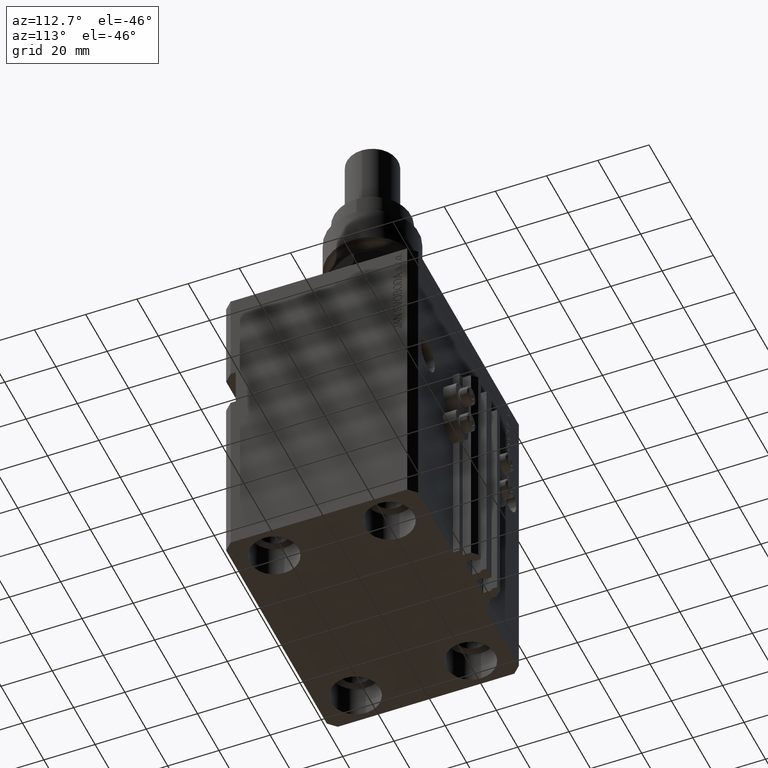
[diagram: clean part render]
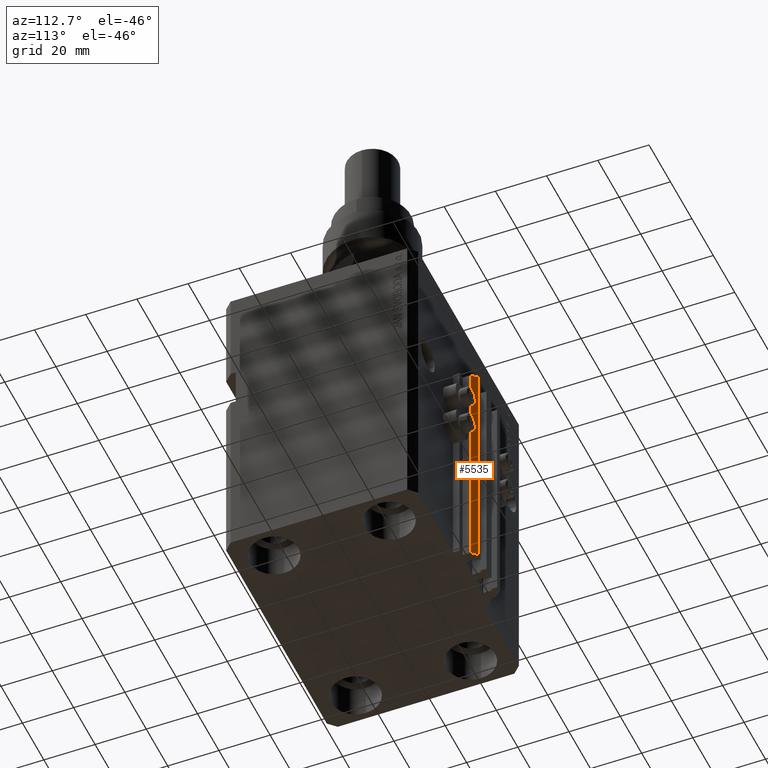
[diagram: same view with one face highlighted and labeled with its STEP entity id]
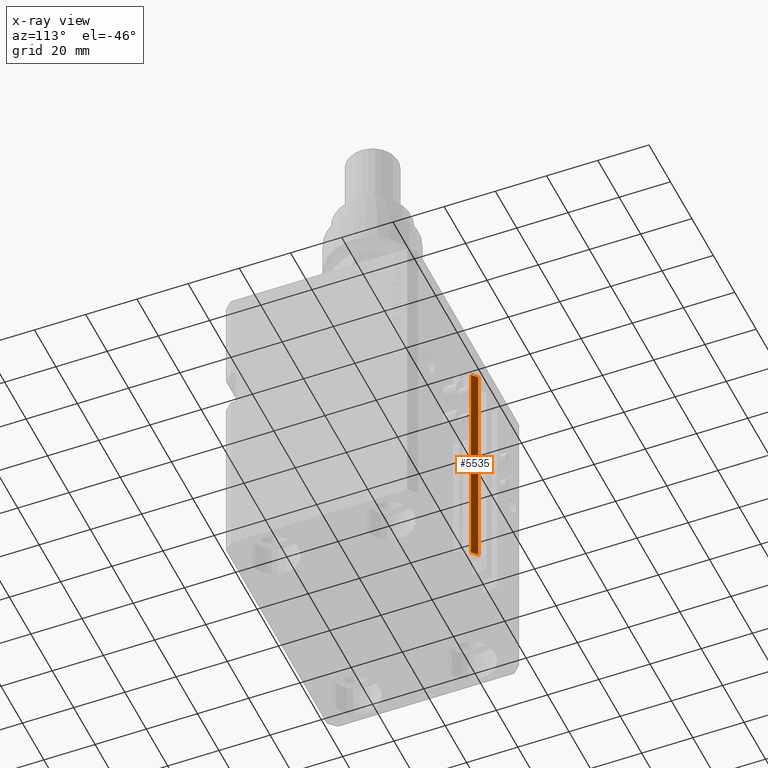
[diagram: x-ray of the same camera — body ghosted, the highlighted face saturated]
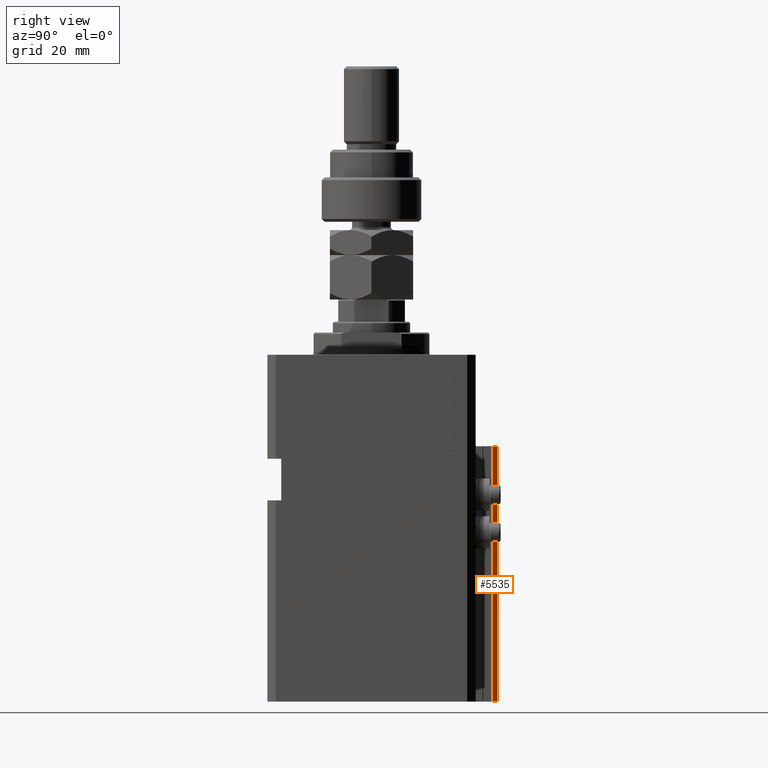
[diagram: same view with one face highlighted and labeled with its STEP entity id]
A machine part, auxiliary view. The second image highlights one B-rep face of the part: STEP entity #5535.
The next image is the same camera in x-ray: the body ghosted, the highlighted face saturated — about 0% of this face is hidden behind the body in this view.
A second angle (right view) of the same face is appended — the face is thin or edge-on in the first view.
In plain terms, the highlighted planar face has unit normal (0.7071, 0.7071, 0).
Its self-contained STEP definition (entity closure, byte-faithful):
#2198 = EDGE_CURVE ( 'NONE', #17009, #15190, #23077, .T. ) ;
#2923 = VERTEX_POINT ( 'NONE', #27248 ) ;
#2971 = VECTOR ( 'NONE', #9578, 1000.000000000000114 ) ;
#3437 = CARTESIAN_POINT ( 'NONE',  ( 12.00000000000000000, 43.50000000000002132, -125.0000000000000000 ) ) ;
#3859 = CARTESIAN_POINT ( 'NONE',  ( 9.999999999999998224, 45.50000000000002842, -125.0000000000000000 ) ) ;
#4927 = VECTOR ( 'NONE', #30752, 1000.000000000000000 ) ;
#5535 = ADVANCED_FACE ( 'NONE', ( #39316 ), #35729, .T. ) ;
#6866 = ORIENTED_EDGE ( 'NONE', *, *, #2198, .F. ) ;
#8413 = DIRECTION ( 'NONE',  ( -0.7071067811865474617, 0.7071067811865474617, 0.000000000000000000 ) ) ;
#9578 = DIRECTION ( 'NONE',  ( -0.7071067811865474617, 0.7071067811865474617, 0.000000000000000000 ) ) ;
#9814 = ORIENTED_EDGE ( 'NONE', *, *, #13125, .T. ) ;
#13125 = EDGE_CURVE ( 'NONE', #2923, #34531, #22244, .T. ) ;
#15190 = VERTEX_POINT ( 'NONE', #17650 ) ;
#17009 = VERTEX_POINT ( 'NONE', #33927 ) ;
#17650 = CARTESIAN_POINT ( 'NONE',  ( 12.00000000000000000, 43.50000000000002132, -33.00000000000000000 ) ) ;
#20418 = CARTESIAN_POINT ( 'NONE',  ( 12.00000000000000000, 43.50000000000002132, -125.0000000000000000 ) ) ;
#20991 = VECTOR ( 'NONE', #47504, 1000.000000000000114 ) ;
#22244 = LINE ( 'NONE', #3859, #40256 ) ;
#22890 = CARTESIAN_POINT ( 'NONE',  ( 9.999999999999998224, 45.50000000000002842, -33.00000000000000000 ) ) ;
#23077 = LINE ( 'NONE', #3437, #4927 ) ;
#24483 = EDGE_LOOP ( 'NONE', ( #35346, #6866, #35110, #9814 ) ) ;
#25337 = AXIS2_PLACEMENT_3D ( 'NONE', #47224, #27828, #8413 ) ;
#26986 = EDGE_CURVE ( 'NONE', #15190, #34531, #29764, .T. ) ;
#27248 = CARTESIAN_POINT ( 'NONE',  ( 9.999999999999998224, 45.50000000000002842, -125.0000000000000000 ) ) ;
#27828 = DIRECTION ( 'NONE',  ( 0.7071067811865475727, 0.7071067811865475727, -0.000000000000000000 ) ) ;
#28727 = EDGE_CURVE ( 'NONE', #17009, #2923, #40328, .T. ) ;
#29764 = LINE ( 'NONE', #41486, #2971 ) ;
#30752 = DIRECTION ( 'NONE',  ( 0.000000000000000000, 0.000000000000000000, 1.000000000000000000 ) ) ;
#33927 = CARTESIAN_POINT ( 'NONE',  ( 12.00000000000000000, 43.50000000000002132, -125.0000000000000000 ) ) ;
#34531 = VERTEX_POINT ( 'NONE', #22890 ) ;
#35110 = ORIENTED_EDGE ( 'NONE', *, *, #28727, .T. ) ;
#35346 = ORIENTED_EDGE ( 'NONE', *, *, #26986, .F. ) ;
#35729 = PLANE ( 'NONE',  #25337 ) ;
#38830 = DIRECTION ( 'NONE',  ( 0.000000000000000000, 0.000000000000000000, 1.000000000000000000 ) ) ;
#39316 = FACE_OUTER_BOUND ( 'NONE', #24483, .T. ) ;
#40256 = VECTOR ( 'NONE', #38830, 1000.000000000000000 ) ;
#40328 = LINE ( 'NONE', #20418, #20991 ) ;
#41486 = CARTESIAN_POINT ( 'NONE',  ( 12.00000000000000000, 43.50000000000002132, -33.00000000000000000 ) ) ;
#47224 = CARTESIAN_POINT ( 'NONE',  ( 12.00000000000000000, 43.50000000000002132, -125.0000000000000000 ) ) ;
#47504 = DIRECTION ( 'NONE',  ( -0.7071067811865474617, 0.7071067811865474617, 0.000000000000000000 ) ) ;